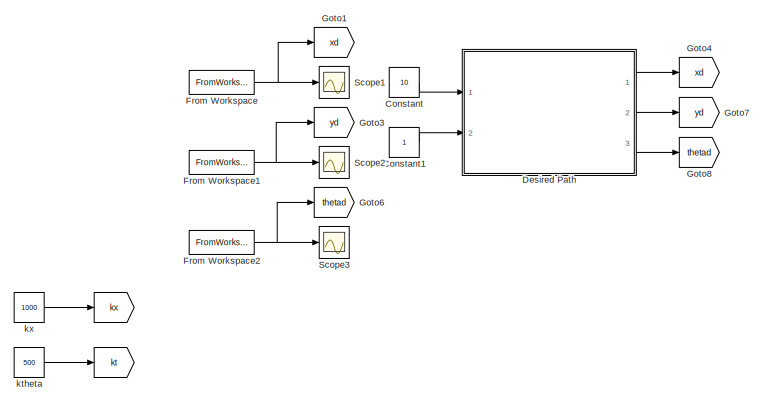
[diagram: root canvas - part 1/2, top center region]
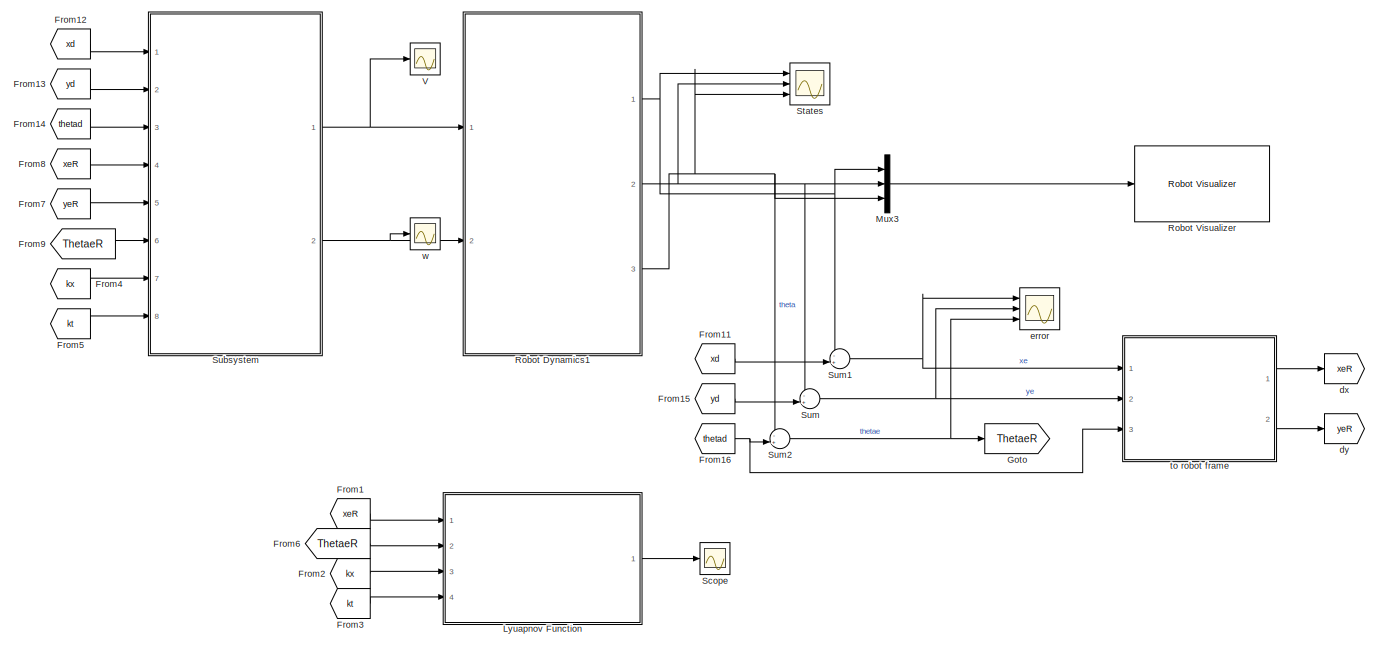
[diagram: root canvas - part 2/2, full width, bottom band]
MODEL slx_818a9126bc55
KIND model
CONFIG AbsTol = auto
CONFIG EnableMultiTasking = off
CONFIG FixedStep = 0.01
CONFIG MaxStep = auto
CONFIG MinStep = auto
CONFIG RelTol = 1e-3
CONFIG SampleTimeConstraint = Unconstrained
CONFIG SolverName = ode23tb
CONFIG StartTime = 0.0
CONFIG StopTime = 8
BLOCK [Goto]  
  GotoTag = kx
BLOCK [Goto]   
  GotoTag = kt
BLOCK [Scope]  States
  Floating = off
  NumInputPorts = 3
  Ports = [3]
  ScopeSpecificationString = Simulink.scopes.TimeScopeBlockCfg('CurrentConfiguration', extmgr.ConfigurationSet(extmgr.Configuration('Core','General UI',true,'FigureColor',[1 1 1]),extmgr.Configuration('Core','Source UI',true),extmgr.Configuration('Sources','WiredSimulink',true,'DataLoggingVariableName','ScopeData6'),extmgr.Configuration('Visuals','Time Domain',true,'SerializedDisplays',{struct('MinYLimReal','-0.86024','MaxYLi...<+3214ch>
BLOCK [Constant] Constant
  Commented = on
  Value = 10
BLOCK [Constant] Constant1
  Commented = on
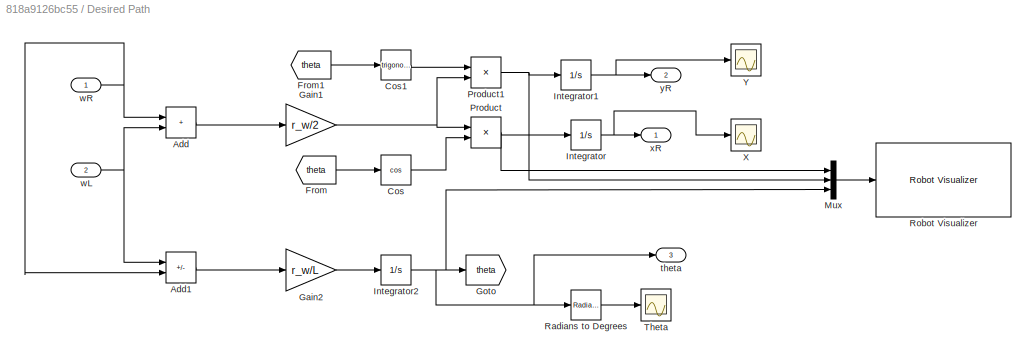
BLOCK [SubSystem] Desired Path
  Commented = on
  Ports = [2, 3]
  RequestExecContextInheritance = off
BLOCK [Sum] Desired Path/Add
  IconShape = rectangular
  Ports = [2, 1]
BLOCK [Sum] Desired Path/Add1
  IconShape = rectangular
  Inputs = -+
  Ports = [2, 1]
BLOCK [Trigonometry] Desired Path/Cos
  Operator = cos
  Ports = [1, 1]
BLOCK [Trigonometry] Desired Path/Cos1
  Ports = [1, 1]
BLOCK [From] Desired Path/From
  GotoTag = theta
BLOCK [From] Desired Path/From1
  GotoTag = theta
BLOCK [Gain] Desired Path/Gain1
  Gain = r_w/2
BLOCK [Gain] Desired Path/Gain2
  Gain = r_w/L
BLOCK [Goto] Desired Path/Goto
  GotoTag = theta
BLOCK [Integrator] Desired Path/Integrator
  InitialCondition = x0
  Ports = [1, 1]
BLOCK [Integrator] Desired Path/Integrator1
  InitialCondition = y0
  Ports = [1, 1]
BLOCK [Integrator] Desired Path/Integrator2
  InitialCondition = theta0
  Ports = [1, 1]
BLOCK [Mux] Desired Path/Mux
  DisplayOption = bar
  Inputs = 3
  Ports = [3, 1]
BLOCK [Product] Desired Path/Product
  Ports = [2, 1]
BLOCK [Product] Desired Path/Product1
  Ports = [2, 1]
BLOCK [Reference] Desired Path/Radians to Degrees  REF=simulink_extras/Transformations/Radians
to Degrees
  Ports = [1, 1]
  SourceBlock = simulink_extras/Transformations/Radians\nto Degrees
  SourceProductBaseCode = SL
  SourceType = RadiansToDegrees
BLOCK [Reference] Desired Path/Robot Visualizer  REF=mobileRoboticsLib/Environments/Robot Visualizer
  Commented = on
  Ports = [1]
  SourceBlock = mobileRoboticsLib/Environments/Robot Visualizer
  SourceProductName = Mobile Robotics Simulation Toolbox
  SourceType = Visualizer2D
BLOCK [Scope] Desired Path/Theta
  Floating = off
  NumInputPorts = 1
  Ports = [1]
  ScopeSpecificationString = Simulink.scopes.TimeScopeBlockCfg('CurrentConfiguration', extmgr.ConfigurationSet(extmgr.Configuration('Core','General UI',true),extmgr.Configuration('Core','Source UI',true),extmgr.Configuration('Sources','WiredSimulink',true,'DataLoggingVariableName','ScopeData1'),extmgr.Configuration('Visuals','Time Domain',true,'SerializedDisplays',{struct('MinYLimReal','-143.23945','MaxYLimReal','1289.15504',...<+1547ch>
BLOCK [Scope] Desired Path/X
  Floating = off
  NumInputPorts = 1
  Ports = [1]
  ScopeSpecificationString = Simulink.scopes.TimeScopeBlockCfg('CurrentConfiguration', extmgr.ConfigurationSet(extmgr.Configuration('Core','General UI',true),extmgr.Configuration('Core','Source UI',true),extmgr.Configuration('Sources','WiredSimulink',true,'DataLoggingVariableName','ScopeData2'),extmgr.Configuration('Visuals','Time Domain',true,'SerializedDisplays',{struct('MinYLimReal','-3.12449','MaxYLimReal','3.12046','YLab...<+1427ch>
BLOCK [Scope] Desired Path/Y
  Floating = off
  NumInputPorts = 1
  Ports = [1]
  ScopeSpecificationString = Simulink.scopes.TimeScopeBlockCfg('CurrentConfiguration', extmgr.ConfigurationSet(extmgr.Configuration('Core','General UI',true),extmgr.Configuration('Core','Source UI',true),extmgr.Configuration('Sources','WiredSimulink',true,'DataLoggingVariableName','ScopeData3'),extmgr.Configuration('Visuals','Time Domain',true,'SerializedDisplays',{struct('MinYLimReal','-0.14111','MaxYLimReal','1.24065','YLab...<+1401ch>
BLOCK [Outport] Desired Path/theta
  Port = 3
BLOCK [Inport] Desired Path/wL
  Port = 2
BLOCK [Inport] Desired Path/wR
BLOCK [Outport] Desired Path/xR
BLOCK [Outport] Desired Path/yR
  Port = 2
BLOCK [FromWorkspace] From Workspace
  OutputAfterFinalValue = Holding final value
  SampleTime = Ts
  VariableName = xfun
BLOCK [FromWorkspace] From Workspace1
  OutputAfterFinalValue = Holding final value
  SampleTime = Ts
  VariableName = yfun
BLOCK [FromWorkspace] From Workspace2
  OutputAfterFinalValue = Holding final value
  SampleTime = Ts
  VariableName = thetafun
BLOCK [From] From1
  GotoTag = xeR
BLOCK [From] From11
  GotoTag = xd
BLOCK [From] From12
  GotoTag = xd
BLOCK [From] From13
  GotoTag = yd
BLOCK [From] From14
  GotoTag = thetad
BLOCK [From] From15
  GotoTag = yd
BLOCK [From] From16
  GotoTag = thetad
BLOCK [From] From2
  GotoTag = kx
BLOCK [From] From3
  GotoTag = kt
BLOCK [From] From4
  GotoTag = kx
BLOCK [From] From5
  GotoTag = kt
BLOCK [From] From6
  GotoTag = ThetaeR
BLOCK [From] From7
  GotoTag = yeR
BLOCK [From] From8
  GotoTag = xeR
BLOCK [From] From9
  GotoTag = ThetaeR
BLOCK [Goto] Goto
  GotoTag = ThetaeR
BLOCK [Goto] Goto1
  GotoTag = xd
BLOCK [Goto] Goto3
  GotoTag = yd
BLOCK [Goto] Goto4
  Commented = on
  GotoTag = xd
BLOCK [Goto] Goto6
  GotoTag = thetad
BLOCK [Goto] Goto7
  Commented = on
  GotoTag = yd
BLOCK [Goto] Goto8
  Commented = on
  GotoTag = thetad
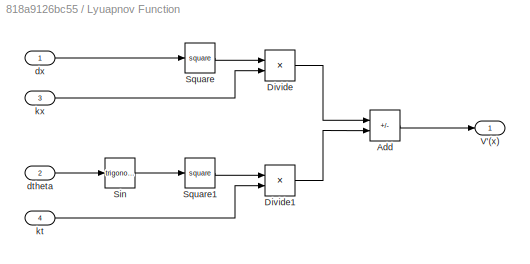
BLOCK [SubSystem] Lyuapnov Function
  Ports = [4, 1]
  RequestExecContextInheritance = off
BLOCK [Sum] Lyuapnov Function/Add
  IconShape = rectangular
  Inputs = --
  Ports = [2, 1]
BLOCK [Product] Lyuapnov Function/Divide
  Inputs = **
  Ports = [2, 1]
BLOCK [Product] Lyuapnov Function/Divide1
  Inputs = **
  Ports = [2, 1]
BLOCK [Trigonometry] Lyuapnov Function/Sin
  Ports = [1, 1]
BLOCK [Math] Lyuapnov Function/Square
  Operator = square
  Ports = [1, 1]
BLOCK [Math] Lyuapnov Function/Square1
  Operator = square
  Ports = [1, 1]
BLOCK [Outport] Lyuapnov Function/V'(x)
BLOCK [Inport] Lyuapnov Function/dtheta
  Port = 2
BLOCK [Inport] Lyuapnov Function/dx
BLOCK [Inport] Lyuapnov Function/kt
  Port = 4
BLOCK [Inport] Lyuapnov Function/kx
  Port = 3
BLOCK [Mux] Mux3
  DisplayOption = bar
  Inputs = 3
  Ports = [3, 1]
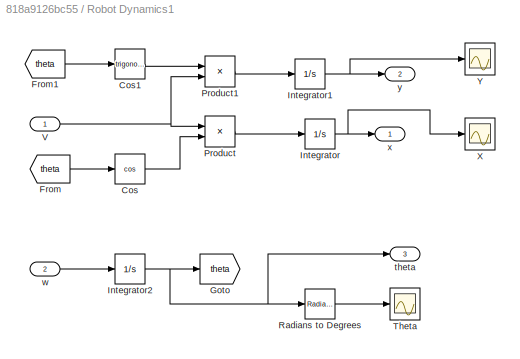
BLOCK [SubSystem] Robot Dynamics1
  Ports = [2, 3]
  RequestExecContextInheritance = off
BLOCK [Trigonometry] Robot Dynamics1/Cos
  Operator = cos
  Ports = [1, 1]
BLOCK [Trigonometry] Robot Dynamics1/Cos1
  Ports = [1, 1]
BLOCK [From] Robot Dynamics1/From
  GotoTag = theta
BLOCK [From] Robot Dynamics1/From1
  GotoTag = theta
BLOCK [Goto] Robot Dynamics1/Goto
  GotoTag = theta
BLOCK [Integrator] Robot Dynamics1/Integrator
  InitialCondition = x0
  Ports = [1, 1]
BLOCK [Integrator] Robot Dynamics1/Integrator1
  InitialCondition = y0
  Ports = [1, 1]
BLOCK [Integrator] Robot Dynamics1/Integrator2
  InitialCondition = theta0
  Ports = [1, 1]
BLOCK [Product] Robot Dynamics1/Product
  Ports = [2, 1]
BLOCK [Product] Robot Dynamics1/Product1
  Ports = [2, 1]
BLOCK [Reference] Robot Dynamics1/Radians to Degrees  REF=simulink_extras/Transformations/Radians
to Degrees
  Ports = [1, 1]
  SourceBlock = simulink_extras/Transformations/Radians\nto Degrees
  SourceProductBaseCode = SL
  SourceType = RadiansToDegrees
BLOCK [Scope] Robot Dynamics1/Theta
  Floating = off
  NumInputPorts = 1
  Ports = [1]
  ScopeSpecificationString = Simulink.scopes.TimeScopeBlockCfg('CurrentConfiguration', extmgr.ConfigurationSet(extmgr.Configuration('Core','General UI',true),extmgr.Configuration('Core','Source UI',true),extmgr.Configuration('Sources','WiredSimulink',true,'DataLoggingVariableName','ScopeData1'),extmgr.Configuration('Visuals','Time Domain',true,'SerializedDisplays',{struct('MinYLimReal','-143.23945','MaxYLimReal','1289.15504',...<+1547ch>
BLOCK [Inport] Robot Dynamics1/V
BLOCK [Scope] Robot Dynamics1/X
  Floating = off
  NumInputPorts = 1
  Ports = [1]
  ScopeSpecificationString = Simulink.scopes.TimeScopeBlockCfg('CurrentConfiguration', extmgr.ConfigurationSet(extmgr.Configuration('Core','General UI',true),extmgr.Configuration('Core','Source UI',true),extmgr.Configuration('Sources','WiredSimulink',true,'DataLoggingVariableName','ScopeData2'),extmgr.Configuration('Visuals','Time Domain',true,'SerializedDisplays',{struct('MinYLimReal','-3.12449','MaxYLimReal','3.12046','YLab...<+1427ch>
BLOCK [Scope] Robot Dynamics1/Y
  Floating = off
  NumInputPorts = 1
  Ports = [1]
  ScopeSpecificationString = Simulink.scopes.TimeScopeBlockCfg('CurrentConfiguration', extmgr.ConfigurationSet(extmgr.Configuration('Core','General UI',true),extmgr.Configuration('Core','Source UI',true),extmgr.Configuration('Sources','WiredSimulink',true),extmgr.Configuration('Visuals','Time Domain',true,'SerializedDisplays',{struct('MinYLimReal','-0.62488','MaxYLimReal','5.62393','YLabelReal','','MinYLimMag','0.00000','MaxY...<+1364ch>
BLOCK [Outport] Robot Dynamics1/theta
  Port = 3
BLOCK [Inport] Robot Dynamics1/w
  Port = 2
BLOCK [Outport] Robot Dynamics1/x
BLOCK [Outport] Robot Dynamics1/y
  Port = 2
BLOCK [Reference] Robot Visualizer  REF=mobileRoboticsLib/Environments/Robot Visualizer
  Ports = [1]
  SourceBlock = mobileRoboticsLib/Environments/Robot Visualizer
  SourceProductName = Mobile Robotics Simulation Toolbox
  SourceType = Visualizer2D
BLOCK [Scope] Scope
  Floating = off
  NumInputPorts = 1
  Ports = [1]
  ScopeSpecificationString = Simulink.scopes.TimeScopeBlockCfg('CurrentConfiguration', extmgr.ConfigurationSet(extmgr.Configuration('Core','General UI',true),extmgr.Configuration('Core','Source UI',true),extmgr.Configuration('Sources','WiredSimulink',true,'DataLoggingVariableName','ScopeData3'),extmgr.Configuration('Visuals','Time Domain',true,'SerializedDisplays',{struct('MinYLimReal','-280.49586','MaxYLimReal','29.02183','Y...<+1432ch>
BLOCK [Scope] Scope1
  Floating = off
  NumInputPorts = 1
  Ports = [1]
  ScopeSpecificationString = Simulink.scopes.TimeScopeBlockCfg('CurrentConfiguration', extmgr.ConfigurationSet(extmgr.Configuration('Core','General UI',true),extmgr.Configuration('Core','Source UI',true),extmgr.Configuration('Sources','WiredSimulink',true,'DataLoggingVariableName','ScopeData1'),extmgr.Configuration('Visuals','Time Domain',true,'SerializedDisplays',{struct('MinYLimReal','-0.75','MaxYLimReal','6.75','YLabelReal...<+1409ch>
BLOCK [Scope] Scope2
  Floating = off
  NumInputPorts = 1
  Ports = [1]
  ScopeSpecificationString = Simulink.scopes.TimeScopeBlockCfg('CurrentConfiguration', extmgr.ConfigurationSet(extmgr.Configuration('Core','General UI',true),extmgr.Configuration('Core','Source UI',true),extmgr.Configuration('Sources','WiredSimulink',true,'DataLoggingVariableName','ScopeData2'),extmgr.Configuration('Visuals','Time Domain',true,'SerializedDisplays',{struct('MinYLimReal','1.04462','MaxYLimReal','6.5506','YLabel...<+1425ch>
BLOCK [Scope] Scope3
  Floating = off
  NumInputPorts = 1
  Ports = [1]
  ScopeSpecificationString = Simulink.scopes.TimeScopeBlockCfg('CurrentConfiguration', extmgr.ConfigurationSet(extmgr.Configuration('Core','General UI',true),extmgr.Configuration('Core','Source UI',true),extmgr.Configuration('Sources','WiredSimulink',true,'DataLoggingVariableName','ScopeData3'),extmgr.Configuration('Visuals','Time Domain',true,'SerializedDisplays',{struct('MinYLimReal','1.04462','MaxYLimReal','6.5506','YLabel...<+1425ch>
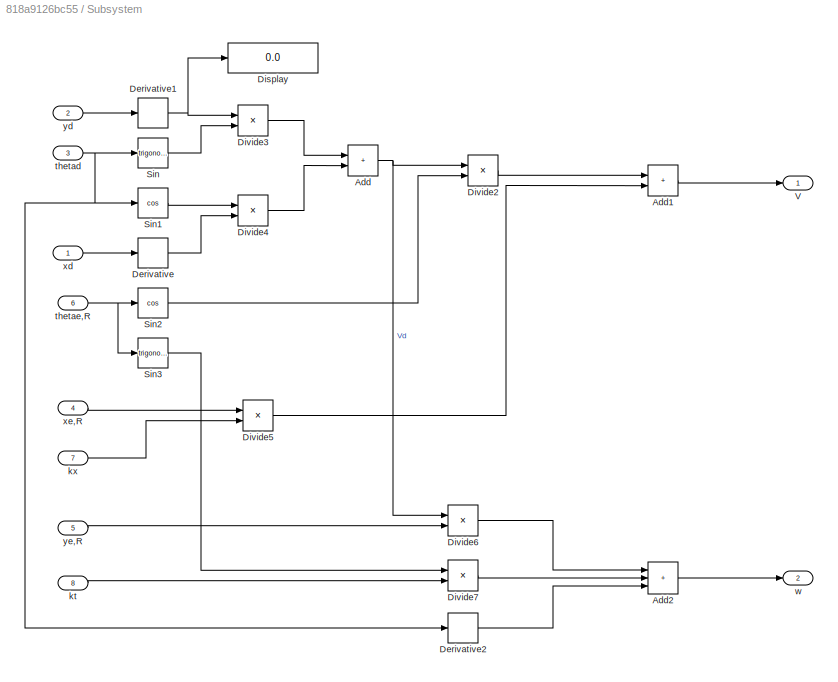
BLOCK [SubSystem] Subsystem
  Ports = [8, 2]
  RequestExecContextInheritance = off
BLOCK [Sum] Subsystem/Add
  IconShape = rectangular
  Ports = [2, 1]
BLOCK [Sum] Subsystem/Add1
  IconShape = rectangular
  Ports = [2, 1]
BLOCK [Sum] Subsystem/Add2
  IconShape = rectangular
  Inputs = +++
  Ports = [3, 1]
BLOCK [Derivative] Subsystem/Derivative
BLOCK [Derivative] Subsystem/Derivative1
BLOCK [Derivative] Subsystem/Derivative2
BLOCK [Display] Subsystem/Display
  Decimation = 1
  Ports = [1]
BLOCK [Product] Subsystem/Divide2
  Inputs = **
  Ports = [2, 1]
BLOCK [Product] Subsystem/Divide3
  Inputs = **
  Ports = [2, 1]
BLOCK [Product] Subsystem/Divide4
  Inputs = **
  Ports = [2, 1]
BLOCK [Product] Subsystem/Divide5
  Inputs = **
  Ports = [2, 1]
BLOCK [Product] Subsystem/Divide6
  Inputs = **
  Ports = [2, 1]
BLOCK [Product] Subsystem/Divide7
  Inputs = **
  Ports = [2, 1]
BLOCK [Trigonometry] Subsystem/Sin
  Ports = [1, 1]
BLOCK [Trigonometry] Subsystem/Sin1
  Operator = cos
  Ports = [1, 1]
BLOCK [Trigonometry] Subsystem/Sin2
  Operator = cos
  Ports = [1, 1]
BLOCK [Trigonometry] Subsystem/Sin3
  Ports = [1, 1]
BLOCK [Outport] Subsystem/V
BLOCK [Inport] Subsystem/kt
  Port = 8
BLOCK [Inport] Subsystem/kx
  Port = 7
BLOCK [Inport] Subsystem/thetad
  Port = 3
BLOCK [Inport] Subsystem/thetae,R
  Port = 6
BLOCK [Outport] Subsystem/w
  Port = 2
BLOCK [Inport] Subsystem/xd
BLOCK [Inport] Subsystem/xe,R
  Port = 4
BLOCK [Inport] Subsystem/yd
  Port = 2
BLOCK [Inport] Subsystem/ye,R
  Port = 5
BLOCK [Sum] Sum
  Inputs = -+|
  Ports = [2, 1]
BLOCK [Sum] Sum1
  Inputs = -+|
  Ports = [2, 1]
BLOCK [Sum] Sum2
  Inputs = -+|
  Ports = [2, 1]
BLOCK [Scope] V
  Floating = off
  NumInputPorts = 1
  Ports = [1]
  ScopeSpecificationString = Simulink.scopes.TimeScopeBlockCfg('CurrentConfiguration', extmgr.ConfigurationSet(extmgr.Configuration('Core','General UI',true),extmgr.Configuration('Core','Source UI',true),extmgr.Configuration('Sources','WiredSimulink',true,'DataLoggingVariableName','ScopeData1'),extmgr.Configuration('Visuals','Time Domain',true,'SerializedDisplays',{struct('MinYLimReal','-7960.15769','MaxYLimReal','930.7411','...<+1563ch>
BLOCK [Goto] dx
  GotoTag = xeR
BLOCK [Goto] dy
  GotoTag = yeR
BLOCK [Scope] error
  Floating = off
  NumInputPorts = 3
  Ports = [3]
  ScopeSpecificationString = Simulink.scopes.TimeScopeBlockCfg('CurrentConfiguration', extmgr.ConfigurationSet(extmgr.Configuration('Core','General UI',true,'FigureColor',[1 1 1]),extmgr.Configuration('Core','Source UI',true),extmgr.Configuration('Sources','WiredSimulink',true,'DataLoggingVariableName','ScopeData1'),extmgr.Configuration('Visuals','Time Domain',true,'SerializedDisplays',{struct('MinYLimReal','-0.04023','MaxYLi...<+3303ch>
BLOCK [Constant] ktheta
  Value = 500
BLOCK [Constant] kx
  Value = 1000
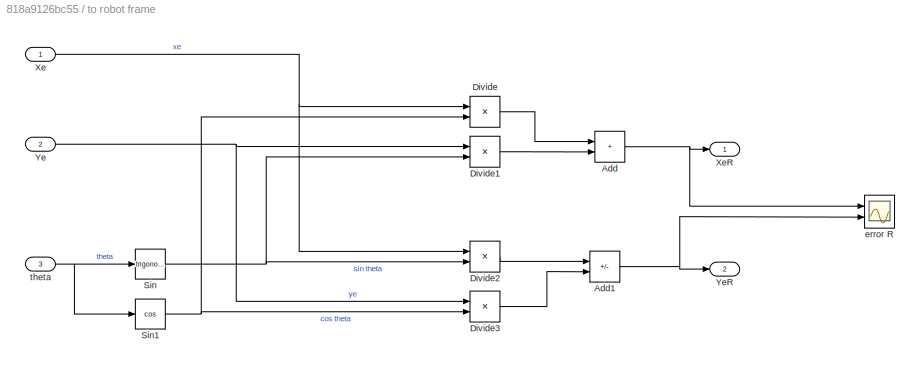
BLOCK [SubSystem] to robot frame
  Ports = [3, 2]
  RequestExecContextInheritance = off
BLOCK [Sum] to robot frame/Add
  IconShape = rectangular
  Ports = [2, 1]
BLOCK [Sum] to robot frame/Add1
  IconShape = rectangular
  Inputs = -+
  Ports = [2, 1]
BLOCK [Product] to robot frame/Divide
  Inputs = **
  Ports = [2, 1]
BLOCK [Product] to robot frame/Divide1
  Inputs = **
  Ports = [2, 1]
BLOCK [Product] to robot frame/Divide2
  Inputs = **
  Ports = [2, 1]
BLOCK [Product] to robot frame/Divide3
  Inputs = **
  Ports = [2, 1]
BLOCK [Trigonometry] to robot frame/Sin
  Ports = [1, 1]
BLOCK [Trigonometry] to robot frame/Sin1
  Operator = cos
  Ports = [1, 1]
BLOCK [Inport] to robot frame/Xe
BLOCK [Outport] to robot frame/XeR
BLOCK [Inport] to robot frame/Ye
  Port = 2
BLOCK [Outport] to robot frame/YeR
  Port = 2
BLOCK [Scope] to robot frame/error R
  Floating = off
  NumInputPorts = 2
  Ports = [2]
  ScopeSpecificationString = Simulink.scopes.TimeScopeBlockCfg('CurrentConfiguration', extmgr.ConfigurationSet(extmgr.Configuration('Core','General UI',true),extmgr.Configuration('Core','Source UI',true),extmgr.Configuration('Sources','WiredSimulink',true,'DataLoggingVariableName','ScopeData1'),extmgr.Configuration('Visuals','Time Domain',true,'SerializedDisplays',{struct('MinYLimReal','-351.93873','MaxYLimReal','649.52609','...<+2090ch>
BLOCK [Inport] to robot frame/theta
  Port = 3
BLOCK [Scope] w
  Floating = off
  NumInputPorts = 1
  Ports = [1]
  ScopeSpecificationString = Simulink.scopes.TimeScopeBlockCfg('CurrentConfiguration', extmgr.ConfigurationSet(extmgr.Configuration('Core','General UI',true),extmgr.Configuration('Core','Source UI',true),extmgr.Configuration('Sources','WiredSimulink',true,'DataLoggingVariableName','ScopeData2'),extmgr.Configuration('Visuals','Time Domain',true,'SerializedDisplays',{struct('MinYLimReal','-226.69066','MaxYLimReal','226.48801','...<+1528ch>
LINE Constant1:1 -> Desired Path:2
LINE Constant:1 -> Desired Path:1
LINE Desired Path/Add1:1 -> Desired Path/Gain2:1
LINE Desired Path/Add:1 -> Desired Path/Gain1:1
LINE Desired Path/Cos1:1 -> Desired Path/Product1:1
LINE Desired Path/Cos:1 -> Desired Path/Product:2
LINE Desired Path/From1:1 -> Desired Path/Cos1:1
LINE Desired Path/From:1 -> Desired Path/Cos:1
NET Desired Path/Gain1:1 -> Desired Path/Product1:2, Desired Path/Product:1
LINE Desired Path/Gain2:1 -> Desired Path/Integrator2:1
NET Desired Path/Integrator1:1 -> Desired Path/Y:1, Desired Path/yR:1
NET Desired Path/Integrator2:1 -> Desired Path/Goto:1, Desired Path/Mux:3, Desired Path/Radians to Degrees:1, Desired Path/theta:1
NET Desired Path/Integrator:1 -> Desired Path/X:1, Desired Path/xR:1
LINE Desired Path/Mux:1 -> Desired Path/Robot Visualizer:1
NET Desired Path/Product1:1 -> Desired Path/Integrator1:1, Desired Path/Mux:2
NET Desired Path/Product:1 -> Desired Path/Integrator:1, Desired Path/Mux:1
LINE Desired Path/Radians to Degrees:1 -> Desired Path/Theta:1
NET Desired Path/wL:1 -> Desired Path/Add1:1, Desired Path/Add:2
NET Desired Path/wR:1 -> Desired Path/Add1:2, Desired Path/Add:1
LINE Desired Path:1 -> Goto4:1
LINE Desired Path:2 -> Goto7:1
LINE Desired Path:3 -> Goto8:1
NET From Workspace1:1 -> Goto3:1, Scope2:1
NET From Workspace2:1 -> Goto6:1, Scope3:1
NET From Workspace:1 -> Goto1:1, Scope1:1
LINE From11:1 -> Sum1:2
LINE From12:1 -> Subsystem:1
LINE From13:1 -> Subsystem:2
LINE From14:1 -> Subsystem:3
LINE From15:1 -> Sum:2
NET From16:1 -> Sum2:2, to robot frame:3
LINE From1:1 -> Lyuapnov Function:1
LINE From2:1 -> Lyuapnov Function:3
LINE From3:1 -> Lyuapnov Function:4
LINE From4:1 -> Subsystem:7
LINE From5:1 -> Subsystem:8
LINE From6:1 -> Lyuapnov Function:2
LINE From7:1 -> Subsystem:5
LINE From8:1 -> Subsystem:4
LINE From9:1 -> Subsystem:6
LINE Lyuapnov Function/Add:1 -> Lyuapnov Function/V'(x):1
LINE Lyuapnov Function/Divide1:1 -> Lyuapnov Function/Add:2
LINE Lyuapnov Function/Divide:1 -> Lyuapnov Function/Add:1
LINE Lyuapnov Function/Sin:1 -> Lyuapnov Function/Square1:1
LINE Lyuapnov Function/Square1:1 -> Lyuapnov Function/Divide1:1
LINE Lyuapnov Function/Square:1 -> Lyuapnov Function/Divide:1
LINE Lyuapnov Function/dtheta:1 -> Lyuapnov Function/Sin:1
LINE Lyuapnov Function/dx:1 -> Lyuapnov Function/Square:1
LINE Lyuapnov Function/kt:1 -> Lyuapnov Function/Divide1:2
LINE Lyuapnov Function/kx:1 -> Lyuapnov Function/Divide:2
LINE Lyuapnov Function:1 -> Scope:1
LINE Mux3:1 -> Robot Visualizer:1
LINE Robot Dynamics1/Cos1:1 -> Robot Dynamics1/Product1:1
LINE Robot Dynamics1/Cos:1 -> Robot Dynamics1/Product:2
LINE Robot Dynamics1/From1:1 -> Robot Dynamics1/Cos1:1
LINE Robot Dynamics1/From:1 -> Robot Dynamics1/Cos:1
NET Robot Dynamics1/Integrator1:1 -> Robot Dynamics1/Y:1, Robot Dynamics1/y:1
NET Robot Dynamics1/Integrator2:1 -> Robot Dynamics1/Goto:1, Robot Dynamics1/Radians to Degrees:1, Robot Dynamics1/theta:1
NET Robot Dynamics1/Integrator:1 -> Robot Dynamics1/X:1, Robot Dynamics1/x:1
LINE Robot Dynamics1/Product1:1 -> Robot Dynamics1/Integrator1:1
LINE Robot Dynamics1/Product:1 -> Robot Dynamics1/Integrator:1
LINE Robot Dynamics1/Radians to Degrees:1 -> Robot Dynamics1/Theta:1
NET Robot Dynamics1/V:1 -> Robot Dynamics1/Product1:2, Robot Dynamics1/Product:1
LINE Robot Dynamics1/w:1 -> Robot Dynamics1/Integrator2:1
NET Robot Dynamics1:1 ->  States:1, Mux3:1, Sum1:1
NET Robot Dynamics1:2 ->  States:2, Mux3:2, Sum:1
NET Robot Dynamics1:3 ->  States:3, Mux3:3, Sum2:1
LINE Subsystem/Add1:1 -> Subsystem/V:1
LINE Subsystem/Add2:1 -> Subsystem/w:1
NET Subsystem/Add:1 -> Subsystem/Divide2:1, Subsystem/Divide6:1
NET Subsystem/Derivative1:1 -> Subsystem/Display:1, Subsystem/Divide3:1
LINE Subsystem/Derivative2:1 -> Subsystem/Add2:3
LINE Subsystem/Derivative:1 -> Subsystem/Divide4:2
LINE Subsystem/Divide2:1 -> Subsystem/Add1:1
LINE Subsystem/Divide3:1 -> Subsystem/Add:1
LINE Subsystem/Divide4:1 -> Subsystem/Add:2
LINE Subsystem/Divide5:1 -> Subsystem/Add1:2
LINE Subsystem/Divide6:1 -> Subsystem/Add2:1
LINE Subsystem/Divide7:1 -> Subsystem/Add2:2
LINE Subsystem/Sin1:1 -> Subsystem/Divide4:1
LINE Subsystem/Sin2:1 -> Subsystem/Divide2:2
LINE Subsystem/Sin3:1 -> Subsystem/Divide7:1
LINE Subsystem/Sin:1 -> Subsystem/Divide3:2
LINE Subsystem/kt:1 -> Subsystem/Divide7:2
LINE Subsystem/kx:1 -> Subsystem/Divide5:2
NET Subsystem/thetad:1 -> Subsystem/Derivative2:1, Subsystem/Sin1:1, Subsystem/Sin:1
NET Subsystem/thetae,R:1 -> Subsystem/Sin2:1, Subsystem/Sin3:1
LINE Subsystem/xd:1 -> Subsystem/Derivative:1
LINE Subsystem/xe,R:1 -> Subsystem/Divide5:1
LINE Subsystem/yd:1 -> Subsystem/Derivative1:1
LINE Subsystem/ye,R:1 -> Subsystem/Divide6:2
NET Subsystem:1 -> Robot Dynamics1:1, V:1
NET Subsystem:2 -> Robot Dynamics1:2, w:1
NET Sum1:1 -> error:1, to robot frame:1
NET Sum2:1 -> Goto:1, error:3
NET Sum:1 -> error:2, to robot frame:2
LINE ktheta:1 ->   :1
LINE kx:1 ->  :1
NET to robot frame/Add1:1 -> to robot frame/YeR:1, to robot frame/error R:2
NET to robot frame/Add:1 -> to robot frame/XeR:1, to robot frame/error R:1
LINE to robot frame/Divide1:1 -> to robot frame/Add:2
LINE to robot frame/Divide2:1 -> to robot frame/Add1:1
LINE to robot frame/Divide3:1 -> to robot frame/Add1:2
LINE to robot frame/Divide:1 -> to robot frame/Add:1
NET to robot frame/Sin1:1 -> to robot frame/Divide3:2, to robot frame/Divide:2
NET to robot frame/Sin:1 -> to robot frame/Divide1:2, to robot frame/Divide2:2
NET to robot frame/Xe:1 -> to robot frame/Divide2:1, to robot frame/Divide:1
NET to robot frame/Ye:1 -> to robot frame/Divide1:1, to robot frame/Divide3:1
NET to robot frame/theta:1 -> to robot frame/Sin1:1, to robot frame/Sin:1
LINE to robot frame:1 -> dx:1
LINE to robot frame:2 -> dy:1
note: NET lines group one-source signal fan-out (src -> all destinations, sorted); 1:1 wires keep LINE
